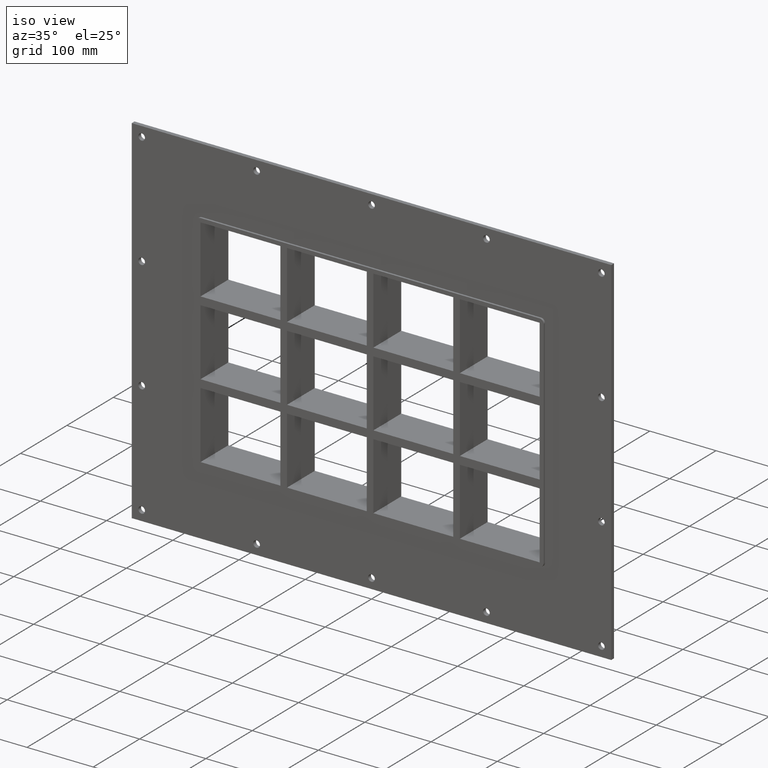
[diagram: clean part render]
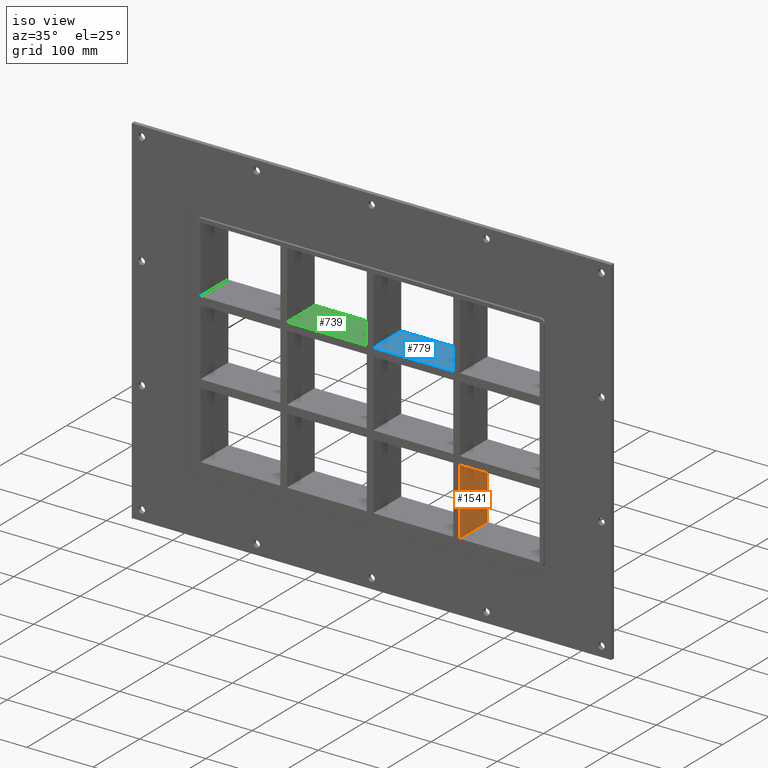
[diagram: same view with three faces highlighted in distinct colors, each labeled with its STEP entity id]
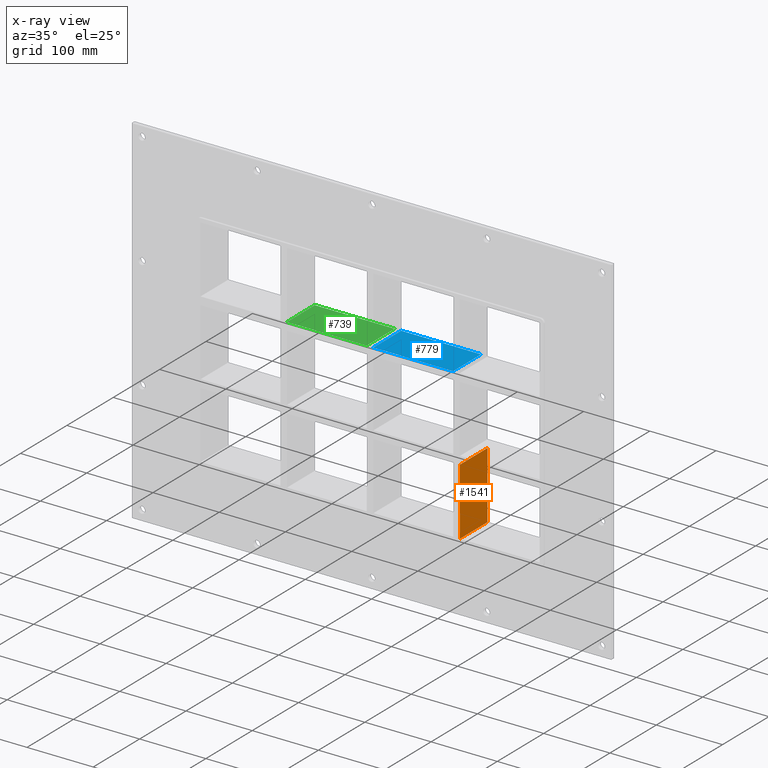
[diagram: x-ray of the same camera — body ghosted, the three highlighted faces saturated]
A machine part, iso view with three faces highlighted in distinct colors.
The next image is the same camera in x-ray (body ghosted, the three faces saturated) — at least one of them is partly hidden behind the body in this view.
Their STEP definitions:

[orange] entity #1541 — the highlighted planar face has unit normal (1, 0, 0).
#1397=CARTESIAN_POINT('',(135.50000000000728,57.0,-163.49999999998428));
#1398=VERTEX_POINT('',#1397);
#1415=CARTESIAN_POINT('',(135.50000000000728,57.0,-62.500000000009308));
#1416=VERTEX_POINT('',#1415);
#1423=CARTESIAN_POINT('',(135.50000000000728,57.0,-62.500000000009322));
#1424=DIRECTION('',(0.0,0.0,-1.0));
#1425=VECTOR('',#1424,100.99999999997496);
#1426=LINE('',#1423,#1425);
#1427=EDGE_CURVE('',#1416,#1398,#1426,.T.);
#1511=CARTESIAN_POINT('',(135.50000000000728,-3.0,163.49999999999997));
#1512=DIRECTION('',(1.0,0.0,0.0));
#1513=DIRECTION('',(0.0,0.0,-1.0));
#1514=AXIS2_PLACEMENT_3D('',#1511,#1512,#1513);
#1515=PLANE('',#1514);
#1516=CARTESIAN_POINT('',(135.50000000000728,-3.0,-62.500000000009308));
#1517=VERTEX_POINT('',#1516);
#1518=CARTESIAN_POINT('',(135.50000000000728,-3.0,-62.500000000009301));
#1519=DIRECTION('',(0.0,1.0,0.0));
#1520=VECTOR('',#1519,60.0);
#1521=LINE('',#1518,#1520);
#1522=EDGE_CURVE('',#1517,#1416,#1521,.T.);
#1523=ORIENTED_EDGE('',*,*,#1522,.F.);
#1524=CARTESIAN_POINT('',(135.50000000000728,-3.0,-163.49999999998431));
#1525=VERTEX_POINT('',#1524);
#1526=CARTESIAN_POINT('',(135.50000000000728,-3.0,-62.500000000009322));
#1527=DIRECTION('',(0.0,0.0,-1.0));
#1528=VECTOR('',#1527,100.99999999997496);
#1529=LINE('',#1526,#1528);
#1530=EDGE_CURVE('',#1517,#1525,#1529,.T.);
#1531=ORIENTED_EDGE('',*,*,#1530,.T.);
#1532=CARTESIAN_POINT('',(135.50000000000728,57.000000000000007,-163.50000000000006));
#1533=DIRECTION('',(0.0,-1.0,0.0));
#1534=VECTOR('',#1533,60.000000000000007);
#1535=LINE('',#1532,#1534);
#1536=EDGE_CURVE('',#1398,#1525,#1535,.T.);
#1537=ORIENTED_EDGE('',*,*,#1536,.F.);
#1538=ORIENTED_EDGE('',*,*,#1427,.F.);
#1539=EDGE_LOOP('',(#1523,#1531,#1537,#1538));
#1540=FACE_OUTER_BOUND('',#1539,.T.);
#1541=ADVANCED_FACE('',(#1540),#1515,.T.);

[blue] entity #779 — the highlighted planar face has unit normal (0, 0, 1).
#740=CARTESIAN_POINT('',(-255.99999999999972,-3.0,62.499999999999893));
#741=DIRECTION('',(0.0,0.0,1.0));
#742=DIRECTION('',(1.0,0.0,0.0));
#743=AXIS2_PLACEMENT_3D('',#740,#741,#742);
#744=PLANE('',#743);
#745=CARTESIAN_POINT('',(125.49999999999862,57.0,62.499999999999893));
#746=VERTEX_POINT('',#745);
#747=CARTESIAN_POINT('',(125.49999999999862,-3.0,62.499999999999893));
#748=VERTEX_POINT('',#747);
#749=CARTESIAN_POINT('',(125.49999999999866,57.0,62.499999999999893));
#750=DIRECTION('',(0.0,-1.0,0.0));
#751=VECTOR('',#750,60.0);
#752=LINE('',#749,#751);
#753=EDGE_CURVE('',#746,#748,#752,.T.);
#754=ORIENTED_EDGE('',*,*,#753,.F.);
#755=CARTESIAN_POINT('',(5.000000000007283,57.0,62.499999999999893));
#756=VERTEX_POINT('',#755);
#757=CARTESIAN_POINT('',(5.000000000007276,57.0,62.499999999999893));
#758=DIRECTION('',(1.0,0.0,0.0));
#759=VECTOR('',#758,120.49999999999136);
#760=LINE('',#757,#759);
#761=EDGE_CURVE('',#756,#746,#760,.T.);
#762=ORIENTED_EDGE('',*,*,#761,.F.);
#763=CARTESIAN_POINT('',(5.000000000007283,-3.0,62.499999999999893));
#764=VERTEX_POINT('',#763);
#765=CARTESIAN_POINT('',(5.000000000007283,-3.0,62.499999999999893));
#766=DIRECTION('',(0.0,1.0,0.0));
#767=VECTOR('',#766,60.0);
#768=LINE('',#765,#767);
#769=EDGE_CURVE('',#764,#756,#768,.T.);
#770=ORIENTED_EDGE('',*,*,#769,.F.);
#771=CARTESIAN_POINT('',(5.000000000007276,-3.0,62.499999999999893));
#772=DIRECTION('',(1.0,0.0,0.0));
#773=VECTOR('',#772,120.49999999999136);
#774=LINE('',#771,#773);
#775=EDGE_CURVE('',#764,#748,#774,.T.);
#776=ORIENTED_EDGE('',*,*,#775,.T.);
#777=EDGE_LOOP('',(#754,#762,#770,#776));
#778=FACE_OUTER_BOUND('',#777,.T.);
#779=ADVANCED_FACE('',(#778),#744,.T.);

[green] entity #739 — the highlighted planar face has unit normal (0, 0, 1).
#700=CARTESIAN_POINT('',(-255.99999999999972,-3.0,62.499999999999893));
#701=DIRECTION('',(0.0,0.0,1.0));
#702=DIRECTION('',(1.0,0.0,0.0));
#703=AXIS2_PLACEMENT_3D('',#700,#701,#702);
#704=PLANE('',#703);
#705=CARTESIAN_POINT('',(-5.00000000000135,57.0,62.499999999999893));
#706=VERTEX_POINT('',#705);
#707=CARTESIAN_POINT('',(-5.00000000000135,-3.0,62.499999999999893));
#708=VERTEX_POINT('',#707);
#709=CARTESIAN_POINT('',(-5.00000000000135,57.0,62.499999999999893));
#710=DIRECTION('',(0.0,-1.0,0.0));
#711=VECTOR('',#710,60.0);
#712=LINE('',#709,#711);
#713=EDGE_CURVE('',#706,#708,#712,.T.);
#714=ORIENTED_EDGE('',*,*,#713,.F.);
#715=CARTESIAN_POINT('',(-125.49999999999272,57.0,62.499999999999893));
#716=VERTEX_POINT('',#715);
#717=CARTESIAN_POINT('',(-125.49999999999272,57.0,62.499999999999893));
#718=DIRECTION('',(1.0,0.0,0.0));
#719=VECTOR('',#718,120.49999999999139);
#720=LINE('',#717,#719);
#721=EDGE_CURVE('',#716,#706,#720,.T.);
#722=ORIENTED_EDGE('',*,*,#721,.F.);
#723=CARTESIAN_POINT('',(-125.49999999999272,-3.0,62.499999999999893));
#724=VERTEX_POINT('',#723);
#725=CARTESIAN_POINT('',(-125.49999999999272,-3.0,62.499999999999893));
#726=DIRECTION('',(0.0,1.0,0.0));
#727=VECTOR('',#726,60.0);
#728=LINE('',#725,#727);
#729=EDGE_CURVE('',#724,#716,#728,.T.);
#730=ORIENTED_EDGE('',*,*,#729,.F.);
#731=CARTESIAN_POINT('',(-125.49999999999272,-3.0,62.499999999999893));
#732=DIRECTION('',(1.0,0.0,0.0));
#733=VECTOR('',#732,120.49999999999139);
#734=LINE('',#731,#733);
#735=EDGE_CURVE('',#724,#708,#734,.T.);
#736=ORIENTED_EDGE('',*,*,#735,.T.);
#737=EDGE_LOOP('',(#714,#722,#730,#736));
#738=FACE_OUTER_BOUND('',#737,.T.);
#739=ADVANCED_FACE('',(#738),#704,.T.);